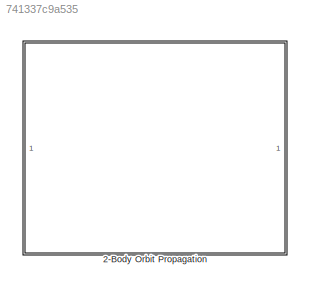
MODEL slx_741337c9a535
KIND library
CONFIG AbsTol = auto
CONFIG EnableMultiTasking = off
CONFIG FixedStep = auto
CONFIG MaxStep = auto
CONFIG MinStep = auto
CONFIG RelTol = 1e-3
CONFIG SampleTimeConstraint = Unconstrained
CONFIG SolverName = VariableStepAuto
CONFIG StartTime = 0.0
CONFIG StopTime = 10.0
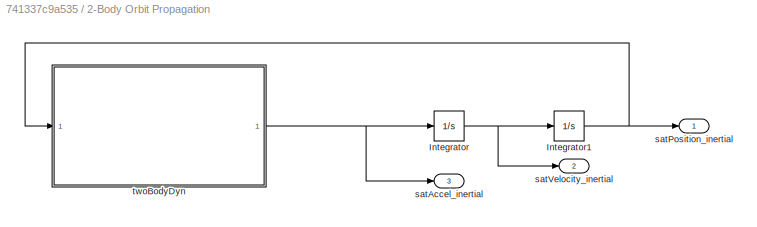
BLOCK [SubSystem] 2-Body Orbit Propagation
BLOCK [Integrator] 2-Body Orbit Propagation/Integrator
  InitialCondition = satVelocity0
BLOCK [Integrator] 2-Body Orbit Propagation/Integrator1
  InitialCondition = satPosition0
BLOCK [Outport] 2-Body Orbit Propagation/satAccel_inertial
  Port = 3
BLOCK [Outport] 2-Body Orbit Propagation/satPosition_inertial
BLOCK [Outport] 2-Body Orbit Propagation/satVelocity_inertial
  Port = 2
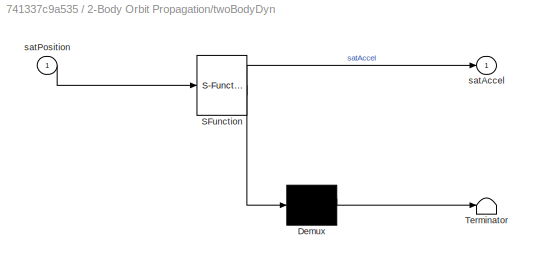
BLOCK [SubSystem] 2-Body Orbit Propagation/twoBodyDyn
  ErrorFcn = Stateflow.Translate.translate
  PermitHierarchicalResolution = ExplicitOnly
  SFBlockType = MATLAB Function
  TreatAsAtomicUnit = on
BLOCK [Demux] 2-Body Orbit Propagation/twoBodyDyn/ Demux 
  Outputs = 1
BLOCK [S-Function] 2-Body Orbit Propagation/twoBodyDyn/ SFunction 
  EnableBusSupport = off
  FunctionName = sf_sfun
  Parameters = mu
  PortCounts = [1 2]
  SFcnIsStateOwnerBlock = off
  SFunctionDeploymentMode = off
  Tag = Stateflow S-Function 2
BLOCK [Terminator] 2-Body Orbit Propagation/twoBodyDyn/ Terminator 
BLOCK [Outport] 2-Body Orbit Propagation/twoBodyDyn/satAccel
BLOCK [Inport] 2-Body Orbit Propagation/twoBodyDyn/satPosition
NET 2-Body Orbit Propagation/Integrator1:1 -> 2-Body Orbit Propagation/satPosition_inertial:1, 2-Body Orbit Propagation/twoBodyDyn:1
NET 2-Body Orbit Propagation/Integrator:1 -> 2-Body Orbit Propagation/Integrator1:1, 2-Body Orbit Propagation/satVelocity_inertial:1
NET 2-Body Orbit Propagation/twoBodyDyn:1 -> 2-Body Orbit Propagation/Integrator:1, 2-Body Orbit Propagation/satAccel_inertial:1
note: NET lines group one-source signal fan-out (src -> all destinations, sorted); 1:1 wires keep LINE
CHART 2-Body Orbit Propagation/twoBodyDyn states=1 transitions=1
  STATE_LABEL 'eML_blk_kernel()'
  STATE_LABEL 'SCRIPT:\nfunction satAccel = twoBodyDyn(satPosition, ...\n    mu ... % Parameters\n    )\n%-------------------------------------------------------------------------------\n\nr = norm(satPosition);\n\nsatAccel = -mu/r^3 .* satPosition;\n\n'
CHART  states=0 transitions=0
